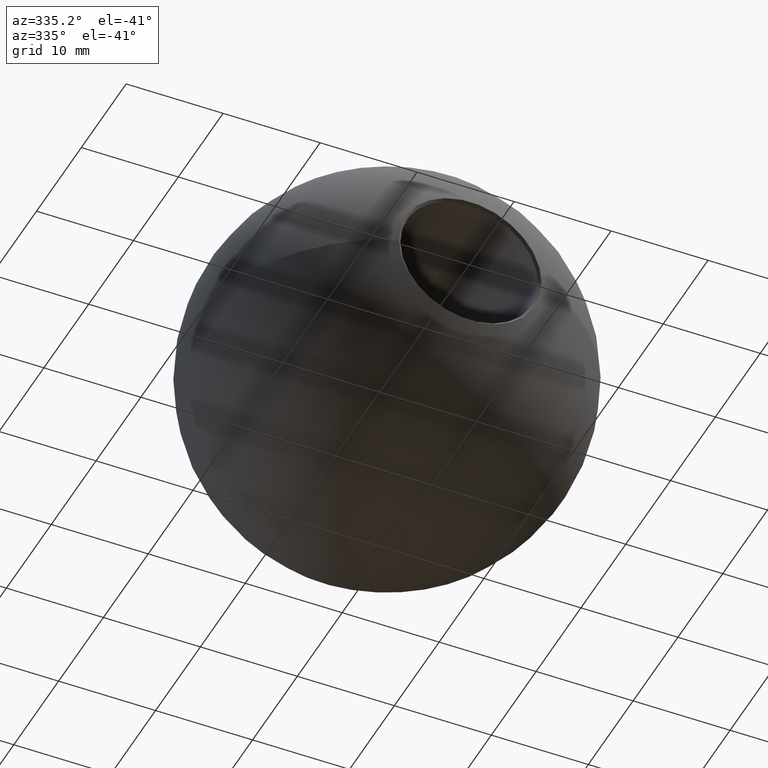
[diagram: clean part render]
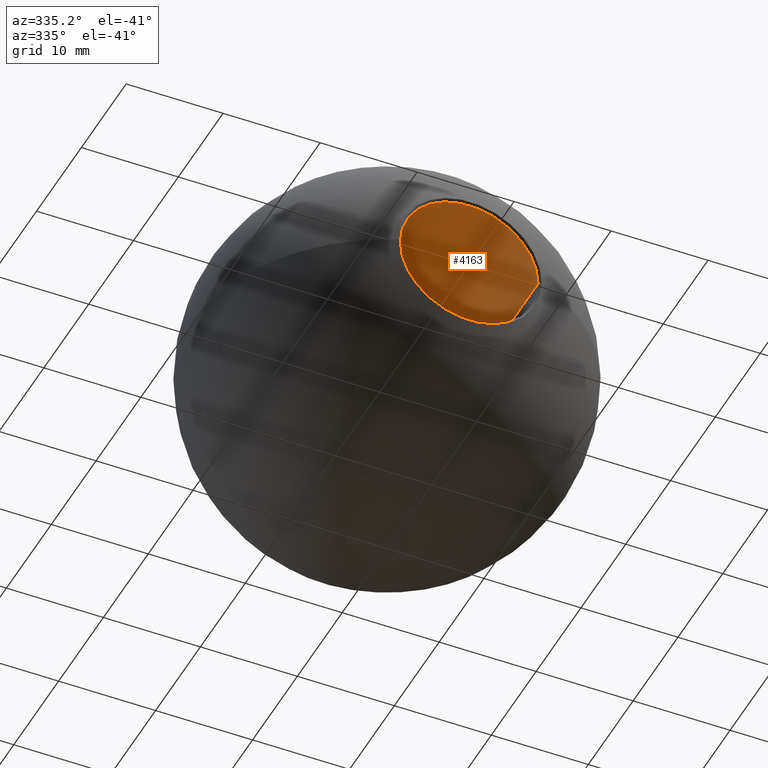
[diagram: same view with one face highlighted and labeled with its STEP entity id]
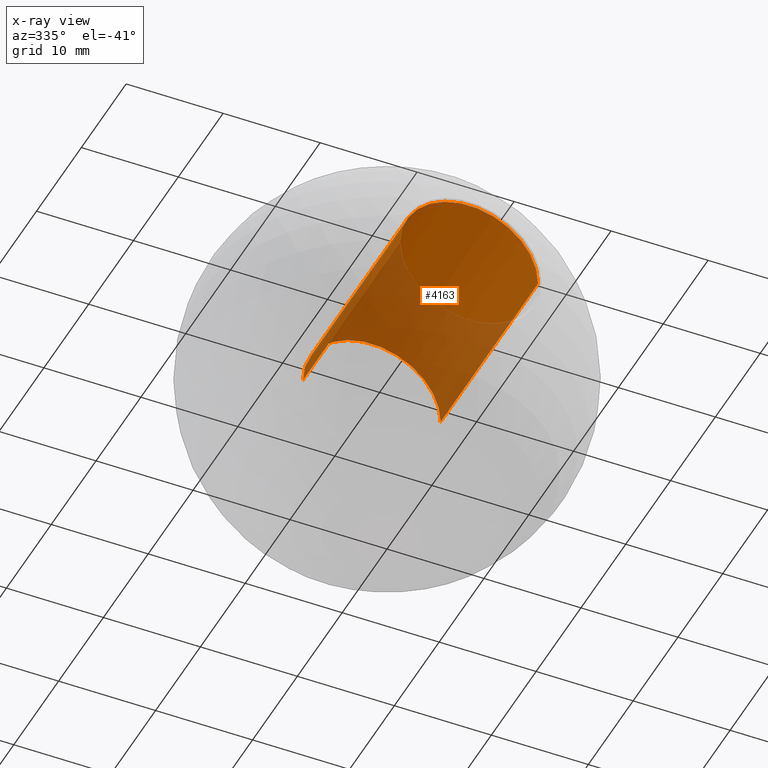
[diagram: x-ray of the same camera — body ghosted, the highlighted face saturated]
A machine part, auxiliary view. The second image highlights one B-rep face of the part: STEP entity #4163.
The next image is the same camera in x-ray: the body ghosted, the highlighted face saturated — about 49% of this face is hidden behind the body in this view.
In plain terms, the highlighted cylindrical surface (partial cylindrical patch) has radius 7.1 mm, axis along (0, -1, -0).
Its self-contained STEP definition (entity closure, byte-faithful):
#588 = ORIENTED_EDGE ( 'NONE', *, *, #3130, .T. ) ;
#714 = VERTEX_POINT ( 'NONE', #11337 ) ;
#1201 = CARTESIAN_POINT ( 'NONE',  ( 8.673617379884035500E-016, 7.665639970937018400, 0.0000000000000000000 ) ) ;
#1564 = CARTESIAN_POINT ( 'NONE',  ( 2.696834744680148500E-015, -18.35047042415862600, 0.0000000000000000000 ) ) ;
#1741 = VECTOR ( 'NONE', #2784, 1000.000000000000000 ) ;
#2101 = DIRECTION ( 'NONE',  ( 1.000000000000000000, 1.221636250687892200E-016, 0.0000000000000000000 ) ) ;
#2388 = AXIS2_PLACEMENT_3D ( 'NONE', #1564, #4302, #8991 ) ;
#2615 = LINE ( 'NONE', #11723, #6709 ) ;
#2645 = ORIENTED_EDGE ( 'NONE', *, *, #10204, .T. ) ;
#2784 = DIRECTION ( 'NONE',  ( 7.032077350950289500E-017, -1.000000000000000000, -0.0000000000000000000 ) ) ;
#3015 = VERTEX_POINT ( 'NONE', #6959 ) ;
#3031 = EDGE_CURVE ( 'NONE', #714, #3015, #2615, .T. ) ;
#3130 = EDGE_CURVE ( 'NONE', #4891, #10013, #4221, .T. ) ;
#3524 = DIRECTION ( 'NONE',  ( 7.032077350950289500E-017, -1.000000000000000000, -0.0000000000000000000 ) ) ;
#3880 = CIRCLE ( 'NONE', #9467, 7.100000000000000500 ) ;
#3988 = CARTESIAN_POINT ( 'NONE',  ( 7.100000000000003200, 3.399529575841365900, 0.0000000000000000000 ) ) ;
#4163 = ADVANCED_FACE ( 'NONE', ( #6991 ), #11140, .F. ) ;
#4221 = LINE ( 'NONE', #4701, #1741 ) ;
#4302 = DIRECTION ( 'NONE',  ( 7.032077350950289500E-017, -1.000000000000000000, -0.0000000000000000000 ) ) ;
#4701 = CARTESIAN_POINT ( 'NONE',  ( 7.100000000000001400, 7.665639970937019300, 0.0000000000000000000 ) ) ;
#4891 = VERTEX_POINT ( 'NONE', #3988 ) ;
#6709 = VECTOR ( 'NONE', #3524, 1000.000000000000000 ) ;
#6959 = CARTESIAN_POINT ( 'NONE',  ( -7.099999999999998800, -18.35047042415862600, 8.848073123839624700E-016 ) ) ;
#6991 = FACE_OUTER_BOUND ( 'NONE', #12055, .T. ) ;
#7800 = DIRECTION ( 'NONE',  ( 7.032077350950289500E-017, -1.000000000000000000, -0.0000000000000000000 ) ) ;
#7958 = AXIS2_PLACEMENT_3D ( 'NONE', #1201, #7800, #2101 ) ;
#8304 = CARTESIAN_POINT ( 'NONE',  ( 1.167357920848461000E-015, 3.399529575841365100, 0.0000000000000000000 ) ) ;
#8583 = CARTESIAN_POINT ( 'NONE',  ( 7.100000000000004100, -18.35047042415862600, 0.0000000000000000000 ) ) ;
#8778 = EDGE_CURVE ( 'NONE', #4891, #714, #3880, .T. ) ;
#8923 = ORIENTED_EDGE ( 'NONE', *, *, #8778, .F. ) ;
#8991 = DIRECTION ( 'NONE',  ( 1.000000000000000000, 0.0000000000000000000, 0.0000000000000000000 ) ) ;
#8999 = CIRCLE ( 'NONE', #2388, 7.100000000000001400 ) ;
#9467 = AXIS2_PLACEMENT_3D ( 'NONE', #8304, #10160, #11070 ) ;
#10013 = VERTEX_POINT ( 'NONE', #8583 ) ;
#10044 = ORIENTED_EDGE ( 'NONE', *, *, #3031, .F. ) ;
#10160 = DIRECTION ( 'NONE',  ( 7.032077350950289500E-017, -1.000000000000000000, -0.0000000000000000000 ) ) ;
#10204 = EDGE_CURVE ( 'NONE', #10013, #3015, #8999, .T. ) ;
#11070 = DIRECTION ( 'NONE',  ( 1.000000000000000000, 6.108181253439461200E-017, 0.0000000000000000000 ) ) ;
#11140 = CYLINDRICAL_SURFACE ( 'NONE', #7958, 7.100000000000000500 ) ;
#11337 = CARTESIAN_POINT ( 'NONE',  ( -7.100000000000001400, 3.399529575841364200, 8.694992273946209700E-016 ) ) ;
#11723 = CARTESIAN_POINT ( 'NONE',  ( -7.099999999999999600, 7.665639970937017500, 8.694992273946207700E-016 ) ) ;
#12055 = EDGE_LOOP ( 'NONE', ( #10044, #8923, #588, #2645 ) ) ;